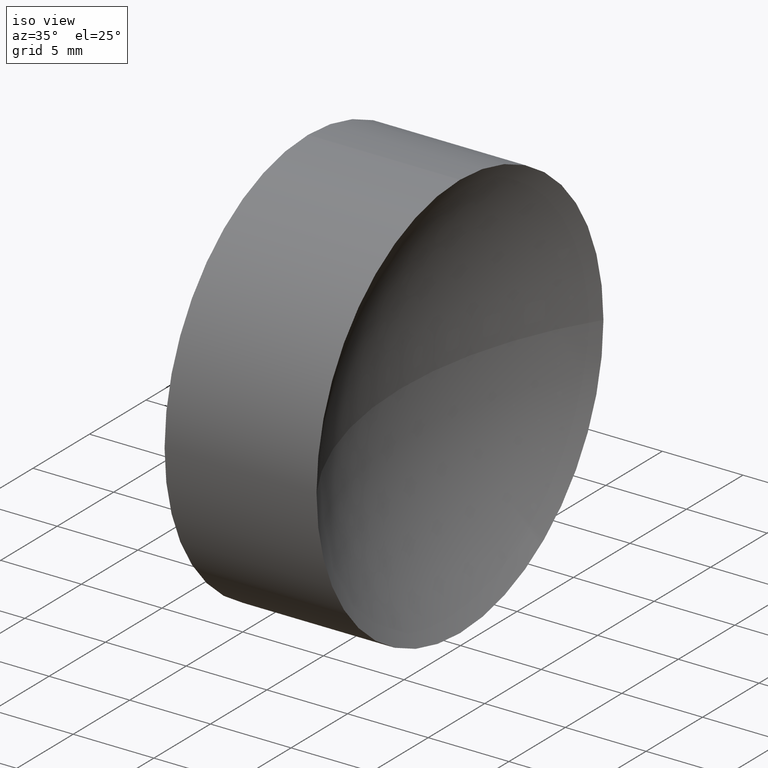
[diagram: clean part render]
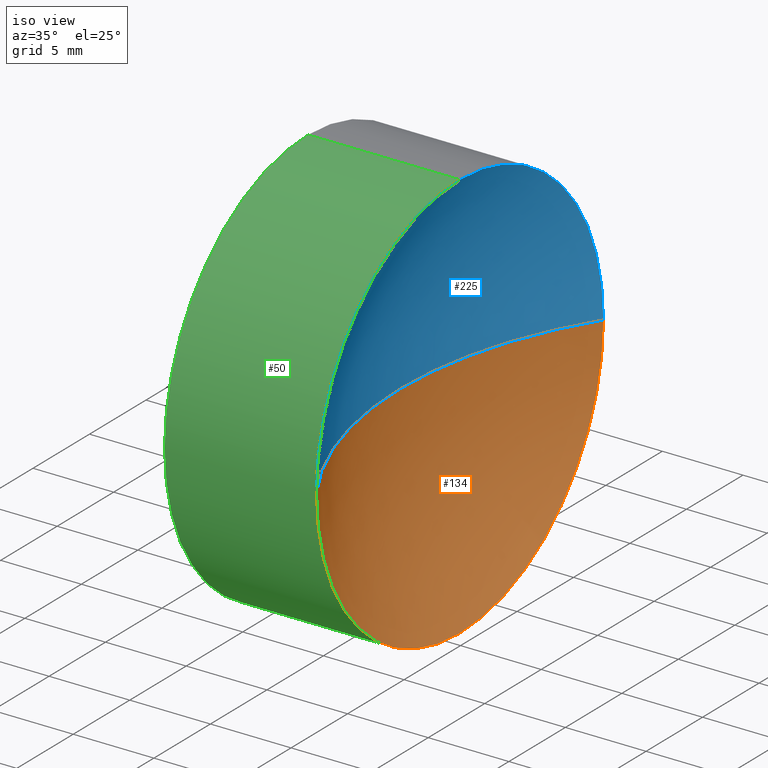
[diagram: same view with three faces highlighted in distinct colors, each labeled with its STEP entity id]
A machine part, iso view with three faces highlighted in distinct colors.
Their STEP definitions:

[orange] entity #134 — the highlighted spherical surface has radius 23.6 mm.
#4 = CIRCLE ( 'NONE', #38, 23.60000000000000900 ) ;
#8 = ORIENTED_EDGE ( 'NONE', *, *, #64, .T. ) ;
#10 = ORIENTED_EDGE ( 'NONE', *, *, #156, .F. ) ;
#14 = DIRECTION ( 'NONE',  ( -1.000000000000000000, -0.0000000000000000000, -0.0000000000000000000 ) ) ;
#16 = CARTESIAN_POINT ( 'NONE',  ( 124.8112479942016800, 65.22260287298739500, 0.0000000000000000000 ) ) ;
#26 = CARTESIAN_POINT ( 'NONE',  ( 144.7027034462293200, 65.22260287298738000, 0.0000000000000000000 ) ) ;
#27 = AXIS2_PLACEMENT_3D ( 'NONE', #48, #89, #172 ) ;
#30 = DIRECTION ( 'NONE',  ( 0.0000000000000000000, 0.0000000000000000000, 1.000000000000000000 ) ) ;
#38 = AXIS2_PLACEMENT_3D ( 'NONE', #113, #201, #224 ) ;
#44 = EDGE_CURVE ( 'NONE', #60, #49, #57, .T. ) ;
#48 = CARTESIAN_POINT ( 'NONE',  ( 144.7027034462293200, 65.22260287298738000, 0.0000000000000000000 ) ) ;
#49 = VERTEX_POINT ( 'NONE', #105 ) ;
#57 = CIRCLE ( 'NONE', #27, 23.60000000000000900 ) ;
#58 = SPHERICAL_SURFACE ( 'NONE', #220, 23.60000000000000900 ) ;
#59 = ORIENTED_EDGE ( 'NONE', *, *, #44, .F. ) ;
#60 = VERTEX_POINT ( 'NONE', #148 ) ;
#63 = FACE_OUTER_BOUND ( 'NONE', #143, .T. ) ;
#64 = EDGE_CURVE ( 'NONE', #229, #49, #4, .T. ) ;
#81 = CIRCLE ( 'NONE', #107, 12.69999999999998900 ) ;
#88 = CARTESIAN_POINT ( 'NONE',  ( 124.8112479942016800, 65.22260287298739500, 0.0000000000000000000 ) ) ;
#89 = DIRECTION ( 'NONE',  ( 0.0000000000000000000, 1.224646799147353200E-016, -1.000000000000000000 ) ) ;
#105 = CARTESIAN_POINT ( 'NONE',  ( 121.1027034462293100, 65.22260287298738000, 0.0000000000000000000 ) ) ;
#107 = AXIS2_PLACEMENT_3D ( 'NONE', #16, #216, #30 ) ;
#113 = CARTESIAN_POINT ( 'NONE',  ( 144.7027034462293200, 65.22260287298738000, 0.0000000000000000000 ) ) ;
#130 = DIRECTION ( 'NONE',  ( 0.0000000000000000000, 0.0000000000000000000, -1.000000000000000000 ) ) ;
#132 = CARTESIAN_POINT ( 'NONE',  ( 124.8112479942016800, 65.22260287298739500, -12.69999999999998900 ) ) ;
#134 = ADVANCED_FACE ( 'NONE', ( #63 ), #58, .F. ) ;
#143 = EDGE_LOOP ( 'NONE', ( #59, #175, #10, #8 ) ) ;
#145 = DIRECTION ( 'NONE',  ( 0.0000000000000000000, 0.0000000000000000000, 1.000000000000000000 ) ) ;
#148 = CARTESIAN_POINT ( 'NONE',  ( 124.8112479942016800, 52.52260287298738500, -1.555301434917137100E-015 ) ) ;
#150 = AXIS2_PLACEMENT_3D ( 'NONE', #88, #14, #145 ) ;
#156 = EDGE_CURVE ( 'NONE', #229, #167, #207, .T. ) ;
#167 = VERTEX_POINT ( 'NONE', #132 ) ;
#172 = DIRECTION ( 'NONE',  ( 0.0000000000000000000, 1.000000000000000000, 1.224646799147353200E-016 ) ) ;
#174 = CARTESIAN_POINT ( 'NONE',  ( 124.8112479942016800, 77.92260287298738300, 0.0000000000000000000 ) ) ;
#175 = ORIENTED_EDGE ( 'NONE', *, *, #197, .F. ) ;
#188 = DIRECTION ( 'NONE',  ( 0.0000000000000000000, 1.000000000000000000, 0.0000000000000000000 ) ) ;
#197 = EDGE_CURVE ( 'NONE', #167, #60, #81, .T. ) ;
#201 = DIRECTION ( 'NONE',  ( 0.0000000000000000000, 0.0000000000000000000, 1.000000000000000000 ) ) ;
#207 = CIRCLE ( 'NONE', #150, 12.69999999999998900 ) ;
#216 = DIRECTION ( 'NONE',  ( -1.000000000000000000, -0.0000000000000000000, -0.0000000000000000000 ) ) ;
#220 = AXIS2_PLACEMENT_3D ( 'NONE', #26, #130, #188 ) ;
#224 = DIRECTION ( 'NONE',  ( 1.000000000000000000, 0.0000000000000000000, 0.0000000000000000000 ) ) ;
#229 = VERTEX_POINT ( 'NONE', #174 ) ;

[blue] entity #225 — the highlighted spherical surface has radius 23.6 mm.
#4 = CIRCLE ( 'NONE', #38, 23.60000000000000900 ) ;
#7 = EDGE_CURVE ( 'NONE', #60, #209, #208, .T. ) ;
#20 = AXIS2_PLACEMENT_3D ( 'NONE', #41, #194, #83 ) ;
#27 = AXIS2_PLACEMENT_3D ( 'NONE', #48, #89, #172 ) ;
#34 = EDGE_CURVE ( 'NONE', #209, #229, #205, .T. ) ;
#36 = AXIS2_PLACEMENT_3D ( 'NONE', #77, #230, #54 ) ;
#38 = AXIS2_PLACEMENT_3D ( 'NONE', #113, #201, #224 ) ;
#41 = CARTESIAN_POINT ( 'NONE',  ( 124.8112479942016800, 65.22260287298739500, 0.0000000000000000000 ) ) ;
#44 = EDGE_CURVE ( 'NONE', #60, #49, #57, .T. ) ;
#48 = CARTESIAN_POINT ( 'NONE',  ( 144.7027034462293200, 65.22260287298738000, 0.0000000000000000000 ) ) ;
#49 = VERTEX_POINT ( 'NONE', #105 ) ;
#54 = DIRECTION ( 'NONE',  ( 0.0000000000000000000, 1.000000000000000000, 0.0000000000000000000 ) ) ;
#57 = CIRCLE ( 'NONE', #27, 23.60000000000000900 ) ;
#60 = VERTEX_POINT ( 'NONE', #148 ) ;
#64 = EDGE_CURVE ( 'NONE', #229, #49, #4, .T. ) ;
#66 = DIRECTION ( 'NONE',  ( -1.000000000000000000, -0.0000000000000000000, -0.0000000000000000000 ) ) ;
#77 = CARTESIAN_POINT ( 'NONE',  ( 144.7027034462293200, 65.22260287298738000, 0.0000000000000000000 ) ) ;
#79 = AXIS2_PLACEMENT_3D ( 'NONE', #142, #66, #126 ) ;
#83 = DIRECTION ( 'NONE',  ( 0.0000000000000000000, 0.0000000000000000000, 1.000000000000000000 ) ) ;
#86 = CARTESIAN_POINT ( 'NONE',  ( 124.8112479942016800, 65.22260287298739500, 12.69999999999998900 ) ) ;
#89 = DIRECTION ( 'NONE',  ( 0.0000000000000000000, 1.224646799147353200E-016, -1.000000000000000000 ) ) ;
#105 = CARTESIAN_POINT ( 'NONE',  ( 121.1027034462293100, 65.22260287298738000, 0.0000000000000000000 ) ) ;
#106 = EDGE_LOOP ( 'NONE', ( #149, #157, #153, #211 ) ) ;
#113 = CARTESIAN_POINT ( 'NONE',  ( 144.7027034462293200, 65.22260287298738000, 0.0000000000000000000 ) ) ;
#126 = DIRECTION ( 'NONE',  ( 0.0000000000000000000, 0.0000000000000000000, 1.000000000000000000 ) ) ;
#142 = CARTESIAN_POINT ( 'NONE',  ( 124.8112479942016800, 65.22260287298739500, 0.0000000000000000000 ) ) ;
#148 = CARTESIAN_POINT ( 'NONE',  ( 124.8112479942016800, 52.52260287298738500, -1.555301434917137100E-015 ) ) ;
#149 = ORIENTED_EDGE ( 'NONE', *, *, #7, .F. ) ;
#153 = ORIENTED_EDGE ( 'NONE', *, *, #64, .F. ) ;
#157 = ORIENTED_EDGE ( 'NONE', *, *, #44, .T. ) ;
#172 = DIRECTION ( 'NONE',  ( 0.0000000000000000000, 1.000000000000000000, 1.224646799147353200E-016 ) ) ;
#174 = CARTESIAN_POINT ( 'NONE',  ( 124.8112479942016800, 77.92260287298738300, 0.0000000000000000000 ) ) ;
#180 = FACE_OUTER_BOUND ( 'NONE', #106, .T. ) ;
#194 = DIRECTION ( 'NONE',  ( -1.000000000000000000, -0.0000000000000000000, -0.0000000000000000000 ) ) ;
#201 = DIRECTION ( 'NONE',  ( 0.0000000000000000000, 0.0000000000000000000, 1.000000000000000000 ) ) ;
#205 = CIRCLE ( 'NONE', #20, 12.69999999999998900 ) ;
#208 = CIRCLE ( 'NONE', #79, 12.69999999999998900 ) ;
#209 = VERTEX_POINT ( 'NONE', #86 ) ;
#211 = ORIENTED_EDGE ( 'NONE', *, *, #34, .F. ) ;
#221 = SPHERICAL_SURFACE ( 'NONE', #36, 23.60000000000000900 ) ;
#224 = DIRECTION ( 'NONE',  ( 1.000000000000000000, 0.0000000000000000000, 0.0000000000000000000 ) ) ;
#225 = ADVANCED_FACE ( 'NONE', ( #180 ), #221, .F. ) ;
#229 = VERTEX_POINT ( 'NONE', #174 ) ;
#230 = DIRECTION ( 'NONE',  ( 0.0000000000000000000, 0.0000000000000000000, -1.000000000000000000 ) ) ;

[green] entity #50 — the highlighted cylindrical surface (partial cylindrical patch) has radius 12.7 mm, axis along (-1, -0, -0).
#3 = ORIENTED_EDGE ( 'NONE', *, *, #219, .F. ) ;
#5 = LINE ( 'NONE', #185, #155 ) ;
#7 = EDGE_CURVE ( 'NONE', #60, #209, #208, .T. ) ;
#16 = CARTESIAN_POINT ( 'NONE',  ( 124.8112479942016800, 65.22260287298739500, 0.0000000000000000000 ) ) ;
#21 = ORIENTED_EDGE ( 'NONE', *, *, #197, .T. ) ;
#22 = CARTESIAN_POINT ( 'NONE',  ( 115.3941588982569800, 52.52260287298740600, -1.555301434917137100E-015 ) ) ;
#25 = DIRECTION ( 'NONE',  ( -1.000000000000000000, -0.0000000000000000000, -0.0000000000000000000 ) ) ;
#30 = DIRECTION ( 'NONE',  ( 0.0000000000000000000, 0.0000000000000000000, 1.000000000000000000 ) ) ;
#35 = DIRECTION ( 'NONE',  ( 0.0000000000000000000, 0.0000000000000000000, 1.000000000000000000 ) ) ;
#37 = VERTEX_POINT ( 'NONE', #22 ) ;
#43 = CARTESIAN_POINT ( 'NONE',  ( 115.3941588982569800, 65.22260287298739500, -12.69999999999998900 ) ) ;
#50 = ADVANCED_FACE ( 'NONE', ( #109 ), #192, .T. ) ;
#60 = VERTEX_POINT ( 'NONE', #148 ) ;
#66 = DIRECTION ( 'NONE',  ( -1.000000000000000000, -0.0000000000000000000, -0.0000000000000000000 ) ) ;
#68 = CARTESIAN_POINT ( 'NONE',  ( 109.9369352260864600, 65.22260287298739500, 12.69999999999998900 ) ) ;
#79 = AXIS2_PLACEMENT_3D ( 'NONE', #142, #66, #126 ) ;
#80 = AXIS2_PLACEMENT_3D ( 'NONE', #118, #136, #35 ) ;
#81 = CIRCLE ( 'NONE', #107, 12.69999999999998900 ) ;
#84 = CIRCLE ( 'NONE', #80, 12.69999999999998900 ) ;
#86 = CARTESIAN_POINT ( 'NONE',  ( 124.8112479942016800, 65.22260287298739500, 12.69999999999998900 ) ) ;
#87 = DIRECTION ( 'NONE',  ( -1.000000000000000000, -0.0000000000000000000, -0.0000000000000000000 ) ) ;
#92 = EDGE_LOOP ( 'NONE', ( #114, #21, #123, #193, #117, #3 ) ) ;
#97 = VERTEX_POINT ( 'NONE', #43 ) ;
#101 = EDGE_CURVE ( 'NONE', #37, #164, #144, .T. ) ;
#107 = AXIS2_PLACEMENT_3D ( 'NONE', #16, #216, #30 ) ;
#109 = FACE_OUTER_BOUND ( 'NONE', #92, .T. ) ;
#110 = LINE ( 'NONE', #68, #121 ) ;
#112 = AXIS2_PLACEMENT_3D ( 'NONE', #222, #128, #215 ) ;
#114 = ORIENTED_EDGE ( 'NONE', *, *, #163, .F. ) ;
#117 = ORIENTED_EDGE ( 'NONE', *, *, #101, .F. ) ;
#118 = CARTESIAN_POINT ( 'NONE',  ( 115.3941588982569800, 65.22260287298739500, 0.0000000000000000000 ) ) ;
#121 = VECTOR ( 'NONE', #196, 1000.000000000000000 ) ;
#123 = ORIENTED_EDGE ( 'NONE', *, *, #7, .T. ) ;
#126 = DIRECTION ( 'NONE',  ( 0.0000000000000000000, 0.0000000000000000000, 1.000000000000000000 ) ) ;
#128 = DIRECTION ( 'NONE',  ( -1.000000000000000000, -0.0000000000000000000, -0.0000000000000000000 ) ) ;
#131 = AXIS2_PLACEMENT_3D ( 'NONE', #187, #25, #213 ) ;
#132 = CARTESIAN_POINT ( 'NONE',  ( 124.8112479942016800, 65.22260287298739500, -12.69999999999998900 ) ) ;
#136 = DIRECTION ( 'NONE',  ( -1.000000000000000000, -0.0000000000000000000, -0.0000000000000000000 ) ) ;
#138 = EDGE_CURVE ( 'NONE', #209, #164, #110, .T. ) ;
#142 = CARTESIAN_POINT ( 'NONE',  ( 124.8112479942016800, 65.22260287298739500, 0.0000000000000000000 ) ) ;
#144 = CIRCLE ( 'NONE', #131, 12.69999999999998900 ) ;
#148 = CARTESIAN_POINT ( 'NONE',  ( 124.8112479942016800, 52.52260287298738500, -1.555301434917137100E-015 ) ) ;
#155 = VECTOR ( 'NONE', #87, 1000.000000000000000 ) ;
#163 = EDGE_CURVE ( 'NONE', #167, #97, #5, .T. ) ;
#164 = VERTEX_POINT ( 'NONE', #214 ) ;
#167 = VERTEX_POINT ( 'NONE', #132 ) ;
#185 = CARTESIAN_POINT ( 'NONE',  ( 109.9369352260864600, 65.22260287298739500, -12.69999999999998900 ) ) ;
#187 = CARTESIAN_POINT ( 'NONE',  ( 115.3941588982569800, 65.22260287298739500, 0.0000000000000000000 ) ) ;
#192 = CYLINDRICAL_SURFACE ( 'NONE', #112, 12.69999999999998900 ) ;
#193 = ORIENTED_EDGE ( 'NONE', *, *, #138, .T. ) ;
#196 = DIRECTION ( 'NONE',  ( -1.000000000000000000, -0.0000000000000000000, -0.0000000000000000000 ) ) ;
#197 = EDGE_CURVE ( 'NONE', #167, #60, #81, .T. ) ;
#208 = CIRCLE ( 'NONE', #79, 12.69999999999998900 ) ;
#209 = VERTEX_POINT ( 'NONE', #86 ) ;
#213 = DIRECTION ( 'NONE',  ( 0.0000000000000000000, 0.0000000000000000000, 1.000000000000000000 ) ) ;
#214 = CARTESIAN_POINT ( 'NONE',  ( 115.3941588982569800, 65.22260287298739500, 12.69999999999998900 ) ) ;
#215 = DIRECTION ( 'NONE',  ( 0.0000000000000000000, 0.0000000000000000000, 1.000000000000000000 ) ) ;
#216 = DIRECTION ( 'NONE',  ( -1.000000000000000000, -0.0000000000000000000, -0.0000000000000000000 ) ) ;
#219 = EDGE_CURVE ( 'NONE', #97, #37, #84, .T. ) ;
#222 = CARTESIAN_POINT ( 'NONE',  ( 109.9369352260864600, 65.22260287298739500, 0.0000000000000000000 ) ) ;